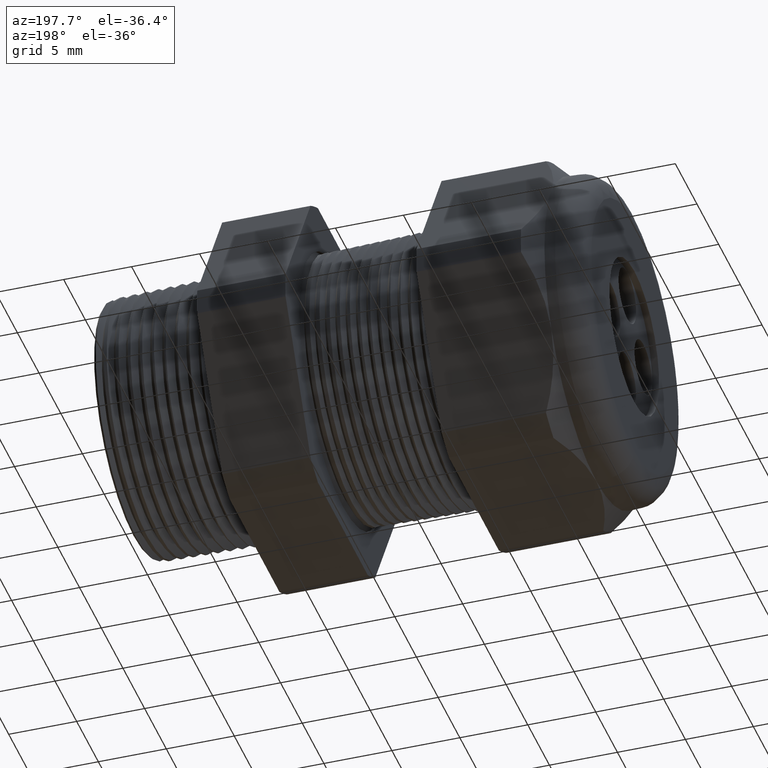
[diagram: clean part render]
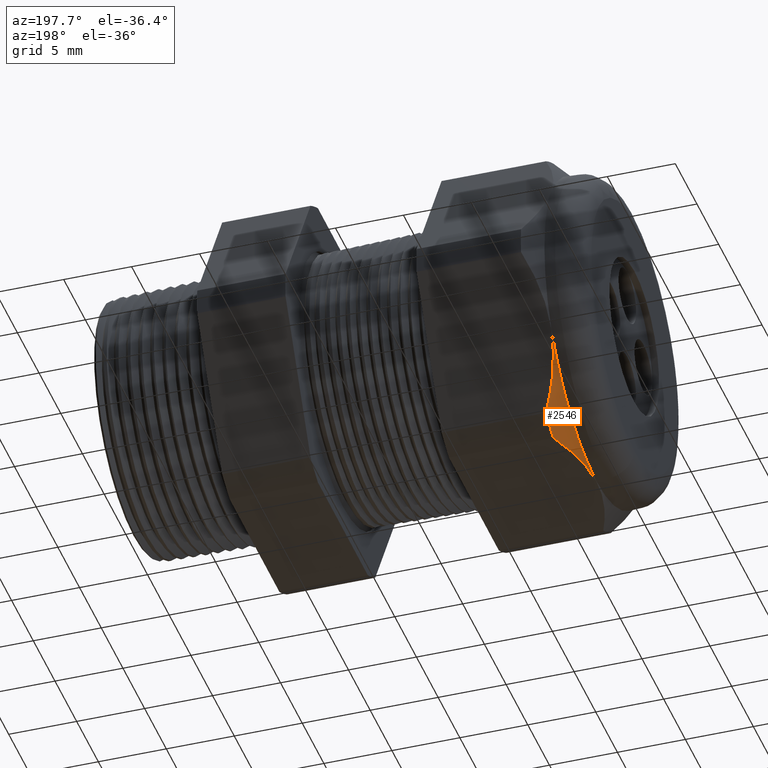
[diagram: same view with one face highlighted and labeled with its STEP entity id]
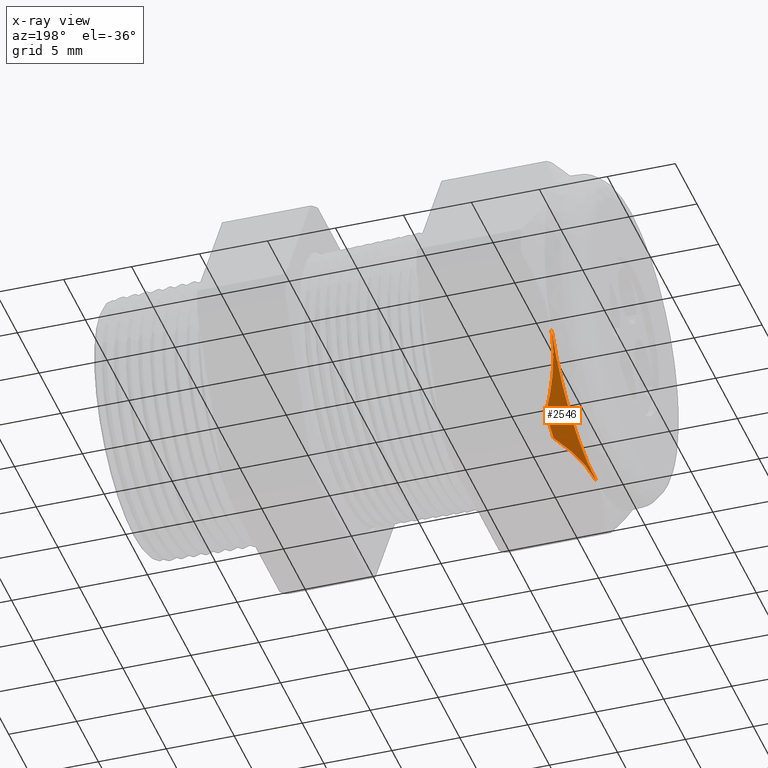
[diagram: x-ray of the same camera — body ghosted, the highlighted face saturated]
A machine part, auxiliary view. The second image highlights one B-rep face of the part: STEP entity #2546.
The next image is the same camera in x-ray: the body ghosted, the highlighted face saturated — about 0% of this face is hidden behind the body in this view.
In plain terms, the highlighted conical surface has half-angle 45 deg.
Its self-contained STEP definition (entity closure, byte-faithful):
#296 = CONICAL_SURFACE ( 'NONE', #297, 0.4699999999999997500, 0.7853981633974501700 ) ;
#297 = AXIS2_PLACEMENT_3D ( 'NONE', #360, #359, #358 ) ;
#298 = FACE_OUTER_BOUND ( 'NONE', #2547, .T. ) ;
#358 = DIRECTION ( 'NONE',  ( 0.0000000000000000000, 0.0000000000000000000, 1.000000000000000000 ) ) ;
#359 = DIRECTION ( 'NONE',  ( 1.000000000000000000, 0.0000000000000000000, 0.0000000000000000000 ) ) ;
#360 = CARTESIAN_POINT ( 'NONE',  ( -1.299763779527559200, 0.0000000000000000000, 0.0000000000000000000 ) ) ;
#1768 = EDGE_CURVE ( 'NONE', #1769, #1844, #4029, .T. ) ;
#1769 = VERTEX_POINT ( 'NONE', #4024 ) ;
#1844 = VERTEX_POINT ( 'NONE', #4200 ) ;
#2082 = VERTEX_POINT ( 'NONE', #4636 ) ;
#2084 = EDGE_CURVE ( 'NONE', #2082, #1844, #4635, .T. ) ;
#2137 = EDGE_CURVE ( 'NONE', #1769, #2149, #4764, .T. ) ;
#2149 = VERTEX_POINT ( 'NONE', #4791 ) ;
#2151 = EDGE_CURVE ( 'NONE', #2149, #2082, #4790, .T. ) ;
#2546 = ADVANCED_FACE ( 'NONE', ( #298 ), #296, .T. ) ;
#2547 = EDGE_LOOP ( 'NONE', ( #2548, #2549, #2550, #2551 ) ) ;
#2548 = ORIENTED_EDGE ( 'NONE', *, *, #1768, .T. ) ;
#2549 = ORIENTED_EDGE ( 'NONE', *, *, #2084, .F. ) ;
#2550 = ORIENTED_EDGE ( 'NONE', *, *, #2151, .F. ) ;
#2551 = ORIENTED_EDGE ( 'NONE', *, *, #2137, .F. ) ;
#4024 = CARTESIAN_POINT ( 'NONE',  ( -1.299763779527559200, 0.0000000000000000000, -0.4700000000000000300 ) ) ;
#4025 = DIRECTION ( 'NONE',  ( 0.0000000000000000000, 0.0000000000000000000, -1.000000000000000000 ) ) ;
#4026 = DIRECTION ( 'NONE',  ( 1.000000000000000000, 0.0000000000000000000, 0.0000000000000000000 ) ) ;
#4027 = CARTESIAN_POINT ( 'NONE',  ( -1.299763779527559200, 0.0000000000000000000, 0.0000000000000000000 ) ) ;
#4028 = AXIS2_PLACEMENT_3D ( 'NONE', #4027, #4026, #4025 ) ;
#4029 = CIRCLE ( 'NONE', #4028, 0.4699999999999999200 ) ;
#4200 = CARTESIAN_POINT ( 'NONE',  ( -1.299763779527559200, 0.4070319397786864000, -0.2350000000000000100 ) ) ;
#4623 = CARTESIAN_POINT ( 'NONE',  ( -1.299763779527559200, 0.4070319397786864000, -0.2350000000000000100 ) ) ;
#4624 = CARTESIAN_POINT ( 'NONE',  ( -1.299763779527558900, 0.4021312490570416200, -0.2434882453220695600 ) ) ;
#4625 = CARTESIAN_POINT ( 'NONE',  ( -1.299453644849873200, 0.3971857355050536500, -0.2520541260636330900 ) ) ;
#4626 = CARTESIAN_POINT ( 'NONE',  ( -1.298221849142434700, 0.3873598765596236700, -0.2690730129851234300 ) ) ;
#4627 = CARTESIAN_POINT ( 'NONE',  ( -1.297304216752655800, 0.3824845463488701900, -0.2775173326138242200 ) ) ;
#4628 = CARTESIAN_POINT ( 'NONE',  ( -1.293700751481475100, 0.3679645453500629500, -0.3026667120697089700 ) ) ;
#4629 = CARTESIAN_POINT ( 'NONE',  ( -1.290164085422760700, 0.3584258972266239900, -0.3191881352550264800 ) ) ;
#4630 = CARTESIAN_POINT ( 'NONE',  ( -1.276620445010038000, 0.3301755151959552300, -0.3681192322653758500 ) ) ;
#4631 = CARTESIAN_POINT ( 'NONE',  ( -1.263697825203294900, 0.3118271010418954300, -0.3998996178185232900 ) ) ;
#4632 = CARTESIAN_POINT ( 'NONE',  ( -1.248063779527559100, 0.2938165587564948700, -0.4310947921287048800 ) ) ;
#4635 = B_SPLINE_CURVE_WITH_KNOTS ( 'NONE', 3,
 ( #4632, #4631, #4630, #4629, #4628, #4627, #4626, #4625, #4624, #4623 ),
 .UNSPECIFIED., .F., .F.,
 ( 4, 2, 2, 2, 4 ),
 ( 2.483251536698716100E-007, 0.002951677829872994700, 0.004427392582232654900, 0.005165249958412482400, 0.005903107334592311600 ),
 .UNSPECIFIED. ) ;
#4636 = CARTESIAN_POINT ( 'NONE',  ( -1.248063779527559100, 0.2938165587564948700, -0.4310947921287048800 ) ) ;
#4750 = CARTESIAN_POINT ( 'NONE',  ( -1.248063779527559100, 0.2264307620443831200, -0.4700000000000000300 ) ) ;
#4751 = CARTESIAN_POINT ( 'NONE',  ( -1.255800509309333000, 0.2086052162099335000, -0.4700000000000000300 ) ) ;
#4752 = CARTESIAN_POINT ( 'NONE',  ( -1.262974602953725700, 0.1903621927138390600, -0.4700000000000000800 ) ) ;
#4753 = CARTESIAN_POINT ( 'NONE',  ( -1.275692781244512500, 0.1533252955870068000, -0.4700000000000000300 ) ) ;
#4754 = CARTESIAN_POINT ( 'NONE',  ( -1.281202062721104500, 0.1346420459264778800, -0.4700000000000000800 ) ) ;
#4755 = CARTESIAN_POINT ( 'NONE',  ( -1.290231001418866700, 0.09688970369981483900, -0.4700000000000000300 ) ) ;
#4756 = CARTESIAN_POINT ( 'NONE',  ( -1.293749478914868200, 0.07782038235249978700, -0.4699999999999999700 ) ) ;
#4757 = CARTESIAN_POINT ( 'NONE',  ( -1.298517019735541100, 0.03924163778662358900, -0.4700000000000000300 ) ) ;
#4758 = CARTESIAN_POINT ( 'NONE',  ( -1.299763779527558300, 0.01964242875915810400, -0.4699999999999999700 ) ) ;
#4759 = CARTESIAN_POINT ( 'NONE',  ( -1.299763779527559200, 0.0000000000000000000, -0.4700000000000000300 ) ) ;
#4764 = B_SPLINE_CURVE_WITH_KNOTS ( 'NONE', 3,
 ( #4759, #4758, #4757, #4756, #4755, #4754, #4753, #4752, #4751, #4750 ),
 .UNSPECIFIED., .F., .F.,
 ( 4, 2, 2, 2, 4 ),
 ( 0.01398828679202869900, 0.01545854684696778100, 0.01692880690190686300, 0.01839906695684594500, 0.01986932701178502700 ),
 .UNSPECIFIED. ) ;
#4786 = DIRECTION ( 'NONE',  ( 0.0000000000000000000, 0.0000000000000000000, -1.000000000000000000 ) ) ;
#4787 = DIRECTION ( 'NONE',  ( 1.000000000000000000, 0.0000000000000000000, 0.0000000000000000000 ) ) ;
#4788 = CARTESIAN_POINT ( 'NONE',  ( -1.248063779527559100, 0.0000000000000000000, 0.0000000000000000000 ) ) ;
#4789 = AXIS2_PLACEMENT_3D ( 'NONE', #4788, #4787, #4786 ) ;
#4790 = CIRCLE ( 'NONE', #4789, 0.5217000000000000500 ) ;
#4791 = CARTESIAN_POINT ( 'NONE',  ( -1.248063779527559100, 0.2264307620443831200, -0.4700000000000000300 ) ) ;